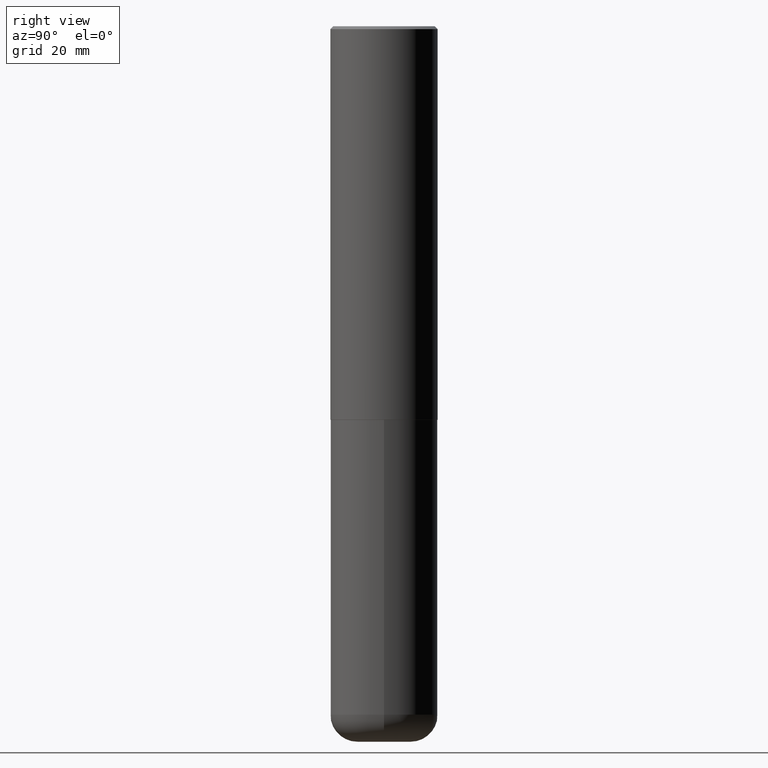
[diagram: clean part render]
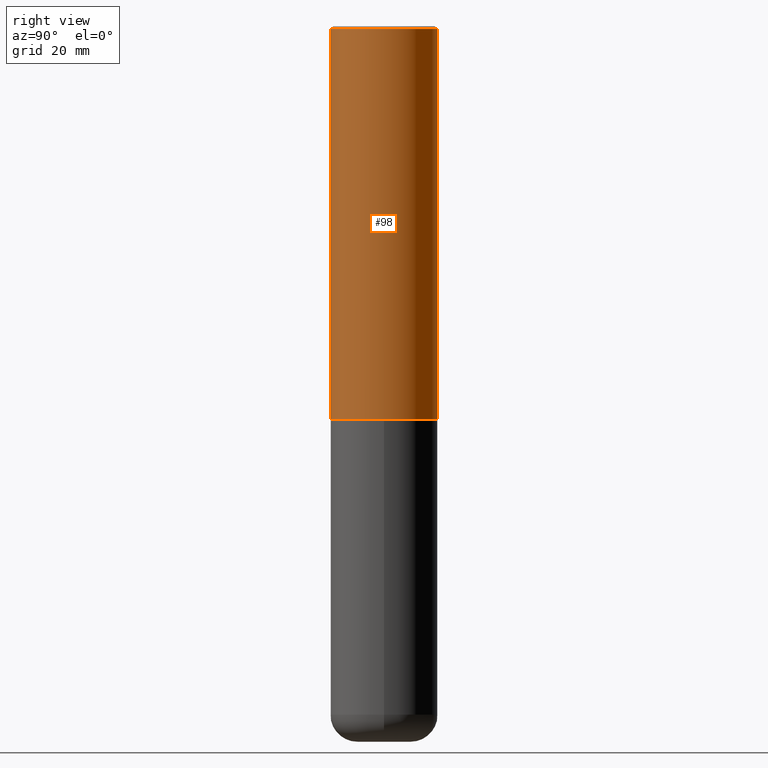
[diagram: same view with one face highlighted and labeled with its STEP entity id]
A machine part, right view. The second image highlights one B-rep face of the part: STEP entity #98.
In plain terms, the highlighted cylindrical surface (partial cylindrical patch) has radius 9.525 mm, axis along (-0, 0, 1).
Its self-contained STEP definition (entity closure, byte-faithful):
#2 = ORIENTED_EDGE ( 'NONE', *, *, #265, .F. ) ;
#9 = VERTEX_POINT ( 'NONE', #236 ) ;
#13 = DIRECTION ( 'NONE',  ( -2.446040391741596606E-29, 3.490662795793665557E-15, 1.000000000000000000 ) ) ;
#16 = CIRCLE ( 'NONE', #74, 0.3750000000000000555 ) ;
#23 = EDGE_CURVE ( 'NONE', #9, #397, #328, .T. ) ;
#29 = EDGE_CURVE ( 'NONE', #228, #9, #192, .T. ) ;
#45 = ORIENTED_EDGE ( 'NONE', *, *, #29, .T. ) ;
#60 = DIRECTION ( 'NONE',  ( -6.982962677686265922E-15, -1.000000000000000000, 2.913971193241877611E-15 ) ) ;
#73 = DIRECTION ( 'NONE',  ( -2.446040391741596606E-29, 3.490662795793665557E-15, 1.000000000000000000 ) ) ;
#74 = AXIS2_PLACEMENT_3D ( 'NONE', #182, #243, #367 ) ;
#84 = VECTOR ( 'NONE', #314, 39.37007874015748143 ) ;
#85 = CARTESIAN_POINT ( 'NONE',  ( -2.618611004132284935E-15, -0.3750000000000099920, -2.748999999999999222 ) ) ;
#86 = CARTESIAN_POINT ( 'NONE',  ( 0.000000000000000000, 0.000000000000000000, 0.000000000000000000 ) ) ;
#94 = ORIENTED_EDGE ( 'NONE', *, *, #23, .T. ) ;
#98 = ADVANCED_FACE ( 'NONE', ( #372 ), #157, .T. ) ;
#115 = AXIS2_PLACEMENT_3D ( 'NONE', #86, #13, #281 ) ;
#118 = CARTESIAN_POINT ( 'NONE',  ( 2.618611004132350411E-15, 0.3749999999999999445, -0.02000000000000139513 ) ) ;
#120 = CARTESIAN_POINT ( 'NONE',  ( -2.618611004132351594E-15, -0.3750000000000002220, 1.308998548422625521E-15 ) ) ;
#145 = EDGE_LOOP ( 'NONE', ( #45, #94, #2, #197 ) ) ;
#157 = CYLINDRICAL_SURFACE ( 'NONE', #115, 0.3750000000000002220 ) ;
#172 = VECTOR ( 'NONE', #73, 39.37007874015748143 ) ;
#173 = CARTESIAN_POINT ( 'NONE',  ( 2.664535259100376880E-15, 0.3750000000000002220, -1.308998548422625521E-15 ) ) ;
#182 = CARTESIAN_POINT ( 'NONE',  ( 4.892080783483214581E-31, -6.981325591587361238E-17, -0.02000000000000008715 ) ) ;
#192 = CIRCLE ( 'NONE', #352, 0.3750000000000003886 ) ;
#197 = ORIENTED_EDGE ( 'NONE', *, *, #400, .F. ) ;
#216 = CARTESIAN_POINT ( 'NONE',  ( -2.572686749164323547E-15, -0.3750000000000001110, -0.01999999999999877570 ) ) ;
#218 = CARTESIAN_POINT ( 'NONE',  ( 6.724165036897648492E-29, -9.595832025636787455E-15, -2.749000000000000110 ) ) ;
#228 = VERTEX_POINT ( 'NONE', #85 ) ;
#236 = CARTESIAN_POINT ( 'NONE',  ( 2.664535259100411196E-15, 0.3749999999999907296, -2.749000000000000998 ) ) ;
#243 = DIRECTION ( 'NONE',  ( -2.446040391741596606E-29, 3.490662795793665557E-15, 1.000000000000000000 ) ) ;
#255 = DIRECTION ( 'NONE',  ( -2.446040391741596606E-29, 3.490662795793665557E-15, 1.000000000000000000 ) ) ;
#265 = EDGE_CURVE ( 'NONE', #271, #397, #16, .T. ) ;
#271 = VERTEX_POINT ( 'NONE', #216 ) ;
#281 = DIRECTION ( 'NONE',  ( -6.982962677686266711E-15, -1.000000000000000000, 3.490662795793665951E-15 ) ) ;
#314 = DIRECTION ( 'NONE',  ( -2.446040391741596606E-29, 3.490662795793665557E-15, 1.000000000000000000 ) ) ;
#328 = LINE ( 'NONE', #173, #172 ) ;
#352 = AXIS2_PLACEMENT_3D ( 'NONE', #218, #255, #60 ) ;
#367 = DIRECTION ( 'NONE',  ( -6.982962677686265922E-15, -1.000000000000000000, 3.494488891895536035E-15 ) ) ;
#372 = FACE_OUTER_BOUND ( 'NONE', #145, .T. ) ;
#379 = LINE ( 'NONE', #120, #84 ) ;
#397 = VERTEX_POINT ( 'NONE', #118 ) ;
#400 = EDGE_CURVE ( 'NONE', #228, #271, #379, .T. ) ;